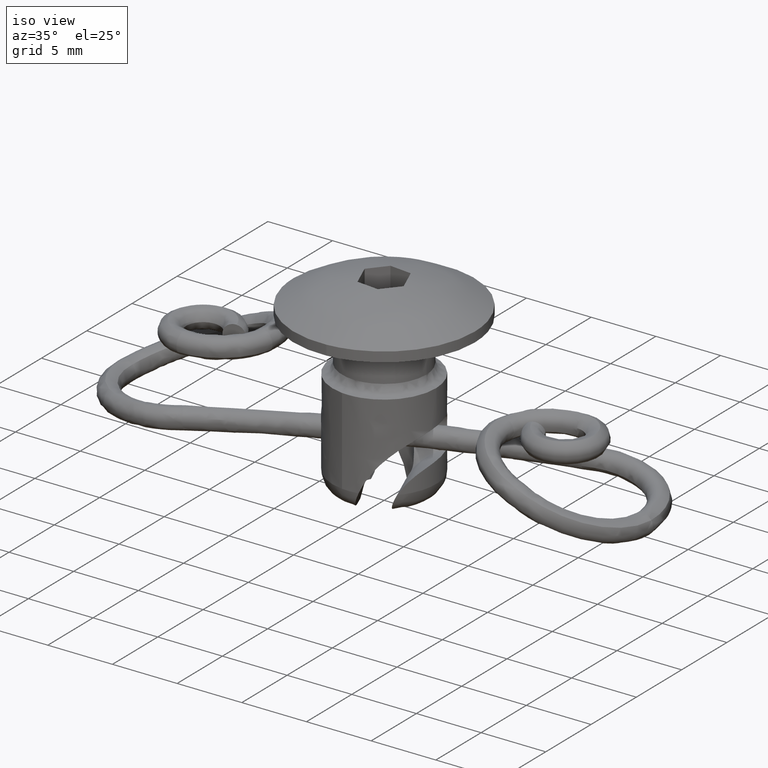
[diagram: clean part render]
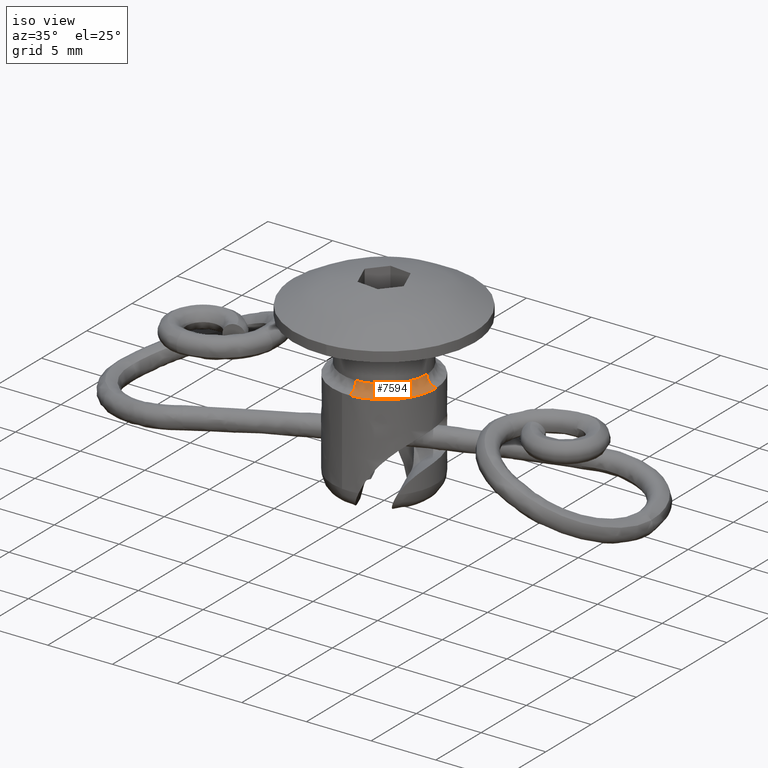
[diagram: same view with one face highlighted and labeled with its STEP entity id]
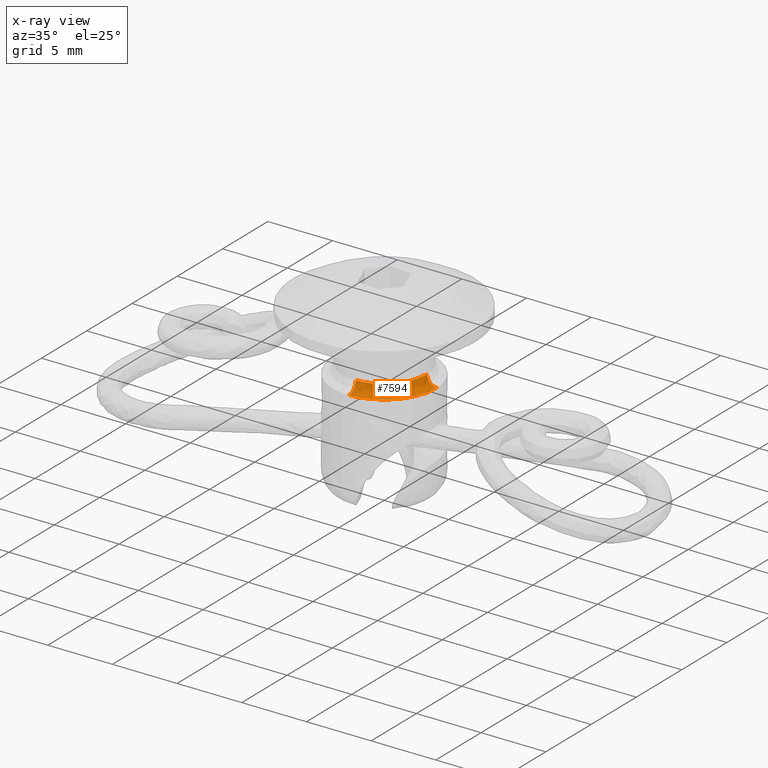
[diagram: x-ray of the same camera — body ghosted, the highlighted face saturated]
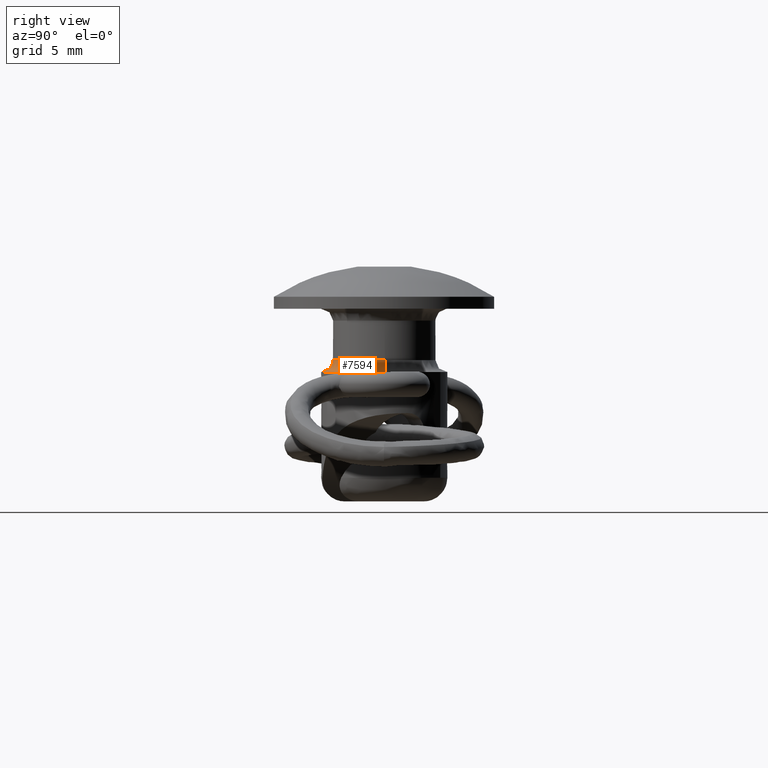
[diagram: same view with one face highlighted and labeled with its STEP entity id]
A machine part, iso view. The second image highlights one B-rep face of the part: STEP entity #7594.
The next image is the same camera in x-ray: the body ghosted, the highlighted face saturated — about 0% of this face is hidden behind the body in this view.
A second angle (right view) of the same face is appended — the face is thin or edge-on in the first view.
In plain terms, the highlighted face is a freeform B-spline surface patch.
Its self-contained STEP definition (entity closure, byte-faithful):
#6093=CARTESIAN_POINT('',(3.248975614540347,0.081672860451413,4.904990754837560));
#6094=VERTEX_POINT('',#6093);
#6145=CARTESIAN_POINT('',(2.396153467436376,-2.195668818474616,4.904989781557901));
#6146=VERTEX_POINT('',#6145);
#6152=CARTESIAN_POINT('',(3.250002000000000,0.0,4.904989785359620));
#6153=VERTEX_POINT('',#6152);
#6154=CARTESIAN_POINT('',(3.250002000000000,0.0,4.904989785359620));
#6155=CARTESIAN_POINT('',(3.250002000000000,-1.263855551616458,4.904989785359620));
#6156=CARTESIAN_POINT('',(2.396153467436375,-2.195668818474617,4.904989781557902));
#6164=(BOUNDED_CURVE()B_SPLINE_CURVE(2,(#6154,#6155,#6156),.UNSPECIFIED.,.F.,.U.)B_SPLINE_CURVE_WITH_KNOTS((3,3),(0.500000000000000,0.618415119942989),.UNSPECIFIED.)CURVE()GEOMETRIC_REPRESENTATION_ITEM()RATIONAL_B_SPLINE_CURVE((1.0,0.861268057454867,0.853959791840981))REPRESENTATION_ITEM(''));
#6165=EDGE_CURVE('',#6153,#6146,#6164,.T.);
#6167=CARTESIAN_POINT('',(3.248975614540348,0.081672860451413,4.904990754837560));
#6168=CARTESIAN_POINT('',(3.250002000000001,0.040842879535392,4.904989785359620));
#6169=CARTESIAN_POINT('',(3.250002000000000,0.0,4.904989785359620));
#6177=(BOUNDED_CURVE()B_SPLINE_CURVE(2,(#6167,#6168,#6169),.UNSPECIFIED.,.F.,.U.)B_SPLINE_CURVE_WITH_KNOTS((3,3),(0.495579891769771,0.500000000000000),.UNSPECIFIED.)CURVE()GEOMETRIC_REPRESENTATION_ITEM()RATIONAL_B_SPLINE_CURVE((0.989826157681492,0.994821521091777,1.0))REPRESENTATION_ITEM(''));
#6178=EDGE_CURVE('',#6094,#6153,#6177,.T.);
#6222=CARTESIAN_POINT('',(0.081672860568316,-3.248975614536155,4.904989771253295));
#6223=VERTEX_POINT('',#6222);
#6239=CARTESIAN_POINT('',(2.396153467436376,-2.195668818474616,4.904989781557901));
#6240=CARTESIAN_POINT('',(1.462790439094323,-3.214257033369583,4.904989777402433));
#6241=CARTESIAN_POINT('',(0.081672860568316,-3.248975614536156,4.904989771253295));
#6249=(BOUNDED_CURVE()B_SPLINE_CURVE(2,(#6239,#6240,#6241),.UNSPECIFIED.,.F.,.U.)B_SPLINE_CURVE_WITH_KNOTS((3,3),(0.618415119942990,0.745579891757175),.UNSPECIFIED.)CURVE()GEOMETRIC_REPRESENTATION_ITEM()RATIONAL_B_SPLINE_CURVE((0.853959791840981,0.846111521032365,0.989826157653023))REPRESENTATION_ITEM(''));
#6250=EDGE_CURVE('',#6146,#6223,#6249,.T.);
#7276=CARTESIAN_POINT('',(0.100520433086982,-3.998738795569929,4.154989785359621));
#7277=VERTEX_POINT('',#7276);
#7457=CARTESIAN_POINT('',(3.998738795540075,0.100520433093483,4.154989785359620));
#7458=VERTEX_POINT('',#7457);
#7472=CARTESIAN_POINT('',(4.000002039269875,0.0,4.154989785359620));
#7473=VERTEX_POINT('',#7472);
#7474=CARTESIAN_POINT('',(3.998738795540075,0.100520433093483,4.154989785359620));
#7475=CARTESIAN_POINT('',(4.000002039269874,0.050268154199667,4.154989785359620));
#7476=CARTESIAN_POINT('',(4.000002039269875,0.0,4.154989785359620));
#7484=(BOUNDED_CURVE()B_SPLINE_CURVE(2,(#7474,#7475,#7476),.UNSPECIFIED.,.F.,.U.)B_SPLINE_CURVE_WITH_KNOTS((3,3),(0.495579891762934,0.500000000000000),.UNSPECIFIED.)CURVE()GEOMETRIC_REPRESENTATION_ITEM()RATIONAL_B_SPLINE_CURVE((0.989826157666040,0.994821521083767,1.0))REPRESENTATION_ITEM(''));
#7485=EDGE_CURVE('',#7458,#7473,#7484,.T.);
#7487=CARTESIAN_POINT('',(4.000002039269875,0.0,4.154989785359620));
#7488=CARTESIAN_POINT('',(4.000002039269875,-3.900713493234316,4.154989785359621));
#7489=CARTESIAN_POINT('',(0.100520433086982,-3.998738795569929,4.154989785359621));
#7497=(BOUNDED_CURVE()B_SPLINE_CURVE(2,(#7487,#7488,#7489),.UNSPECIFIED.,.F.,.U.)B_SPLINE_CURVE_WITH_KNOTS((3,3),(0.500000000000000,0.745579891763568),.UNSPECIFIED.)CURVE()GEOMETRIC_REPRESENTATION_ITEM()RATIONAL_B_SPLINE_CURVE((1.0,0.712285260102038,0.989826157667472))REPRESENTATION_ITEM(''));
#7498=EDGE_CURVE('',#7473,#7277,#7497,.T.);
#7535=CARTESIAN_POINT('',(3.998738795540075,0.100520433093483,4.154989785359620));
#7536=CARTESIAN_POINT('',(3.248973676192960,0.081672811724827,4.154989746523785));
#7537=CARTESIAN_POINT('',(3.248975614540347,0.081672860451413,4.904990754837560));
#7545=(BOUNDED_CURVE()B_SPLINE_CURVE(2,(#7535,#7536,#7537),.UNSPECIFIED.,.F.,.U.)B_SPLINE_CURVE_WITH_KNOTS((3,3),(-1.723441335297940,-0.263584203262845),.UNSPECIFIED.)CURVE()GEOMETRIC_REPRESENTATION_ITEM()RATIONAL_B_SPLINE_CURVE((0.883897585928600,0.626638246162352,0.888511368996857))REPRESENTATION_ITEM(''));
#7546=EDGE_CURVE('',#7458,#6094,#7545,.T.);
#7552=CARTESIAN_POINT('',(0.100520433086982,-3.998738795569930,4.154989785359621));
#7553=CARTESIAN_POINT('',(0.081672861160025,-3.248975642742843,4.154989746464522));
#7554=CARTESIAN_POINT('',(0.081672860568316,-3.248975614536156,4.904989771253295));
#7562=(BOUNDED_CURVE()B_SPLINE_CURVE(2,(#7552,#7553,#7554),.UNSPECIFIED.,.F.,.U.)B_SPLINE_CURVE_WITH_KNOTS((3,3),(-1.723441335379434,-0.263586917859896),.UNSPECIFIED.)CURVE()GEOMETRIC_REPRESENTATION_ITEM()RATIONAL_B_SPLINE_CURVE((0.883897585957322,0.626638724520192,0.888510395095123))REPRESENTATION_ITEM(''));
#7563=EDGE_CURVE('',#7277,#6223,#7562,.T.);
#7568=CARTESIAN_POINT('',(4.051015599659328,0.101834569110145,4.156815069993480));
#7569=CARTESIAN_POINT('',(4.152850168769472,-3.949181030549184,4.156815069993481));
#7570=CARTESIAN_POINT('',(0.101834569110145,-4.051015599659328,4.156815069993480));
#7571=CARTESIAN_POINT('',(3.190991099368893,0.080215243719591,4.096685028511717));
#7572=CARTESIAN_POINT('',(3.271206343088484,-3.110775855649303,4.096685028511717));
#7573=CARTESIAN_POINT('',(0.080215243719591,-3.190991099368893,4.096685028511717));
#7574=CARTESIAN_POINT('',(3.250780844458697,0.081718240382684,4.957003623918022));
#7575=CARTESIAN_POINT('',(3.332499084841382,-3.169062604076014,4.957003623918022));
#7576=CARTESIAN_POINT('',(0.081718240382684,-3.250780844458697,4.957003623918022));
#7584=(BOUNDED_SURFACE()B_SPLINE_SURFACE(2,2,((#7568,#7571,#7574),(#7569,#7572,#7575),(#7570,#7573,#7576)),.UNSPECIFIED.,.F.,.F.,.U.)B_SPLINE_SURFACE_WITH_KNOTS((3,3),(3,3),(0.0,6.714062784035273),(0.0,1.366779108294874),.UNSPECIFIED.)GEOMETRIC_REPRESENTATION_ITEM()RATIONAL_B_SPLINE_SURFACE(((0.910893062185457,0.599412621543584,0.915967131865334),(0.644098661207116,0.423848729422274,0.647686570285970),(0.910893062185457,0.599412621543584,0.915967131865334)))REPRESENTATION_ITEM('')SURFACE());
#7585=ORIENTED_EDGE('',*,*,#6250,.T.);
#7586=ORIENTED_EDGE('',*,*,#7563,.F.);
#7587=ORIENTED_EDGE('',*,*,#7498,.F.);
#7588=ORIENTED_EDGE('',*,*,#7485,.F.);
#7589=ORIENTED_EDGE('',*,*,#7546,.T.);
#7590=ORIENTED_EDGE('',*,*,#6178,.T.);
#7591=ORIENTED_EDGE('',*,*,#6165,.T.);
#7592=EDGE_LOOP('',(#7585,#7586,#7587,#7588,#7589,#7590,#7591));
#7593=FACE_OUTER_BOUND('',#7592,.T.);
#7594=ADVANCED_FACE('',(#7593),#7584,.F.);